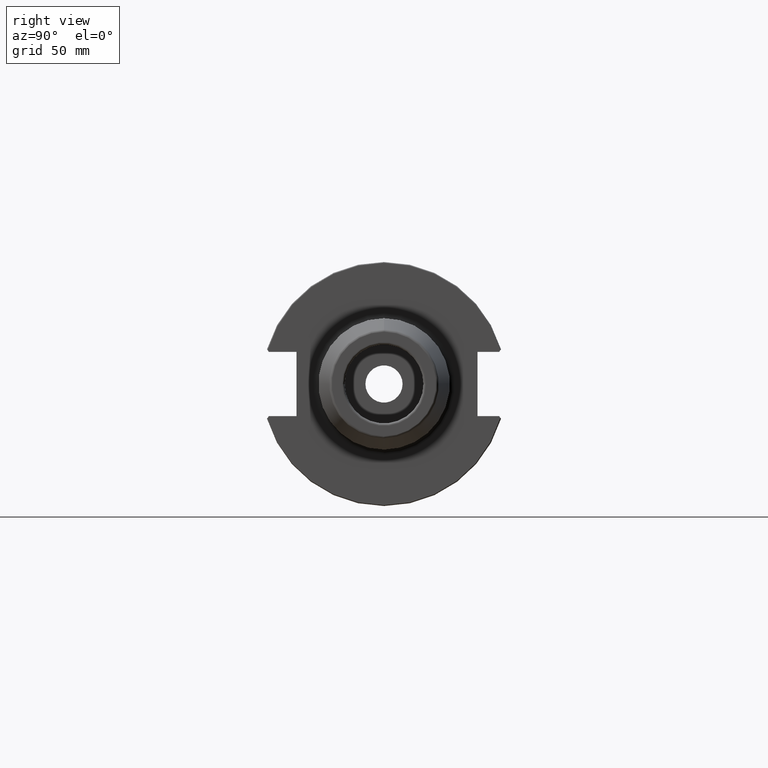
[diagram: clean part render]
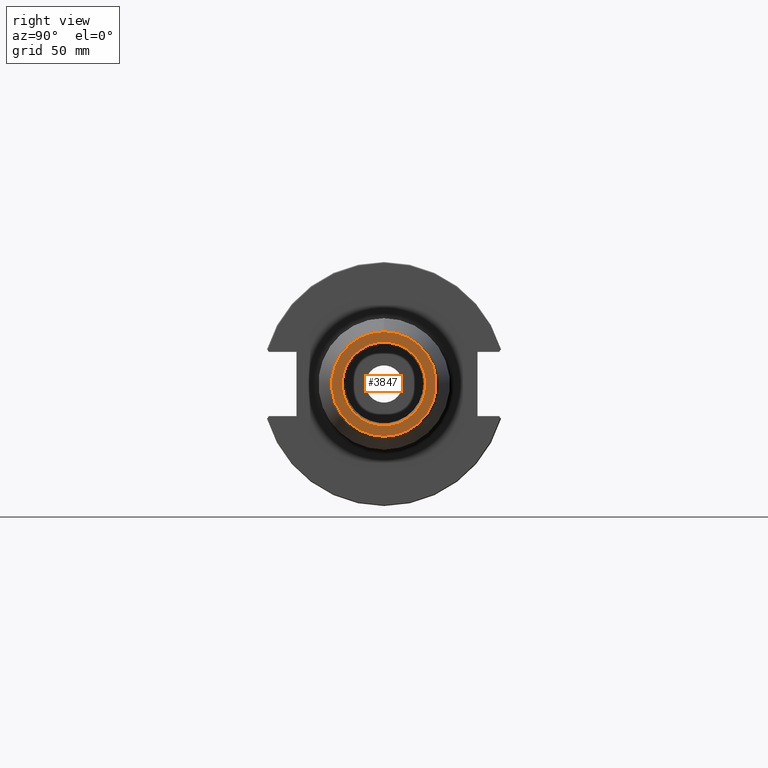
[diagram: same view with one face highlighted and labeled with its STEP entity id]
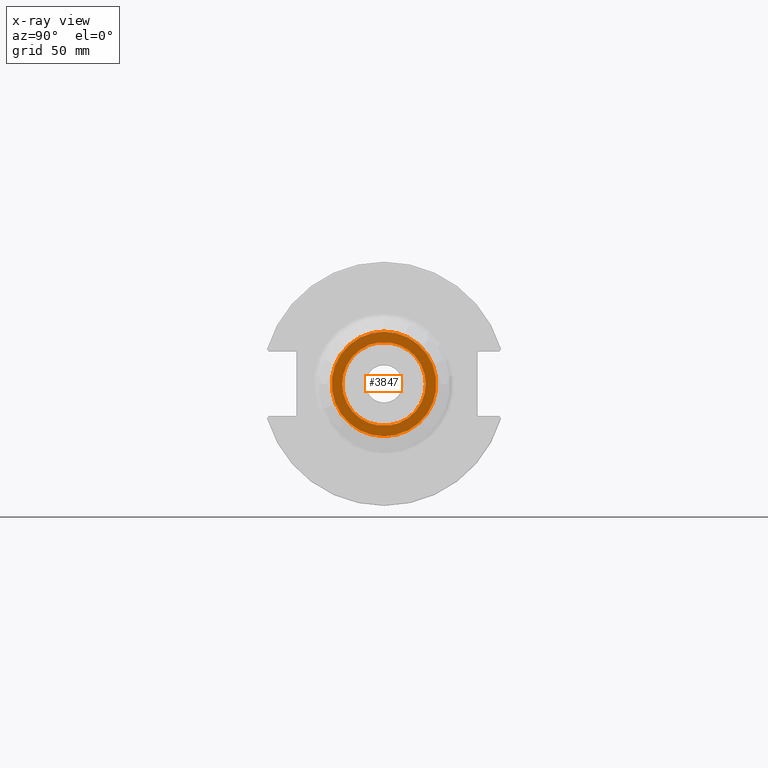
[diagram: x-ray of the same camera — body ghosted, the highlighted face saturated]
A machine part, right view. The second image highlights one B-rep face of the part: STEP entity #3847.
The next image is the same camera in x-ray: the body ghosted, the highlighted face saturated — about 0% of this face is hidden behind the body in this view.
In plain terms, the highlighted planar face has unit normal (-1, 0, 0).
Its self-contained STEP definition (entity closure, byte-faithful):
#1609=CARTESIAN_POINT('',(1.6E2,0.E0,0.E0));
#1610=DIRECTION('',(-1.E0,0.E0,0.E0));
#1611=DIRECTION('',(0.E0,0.E0,1.E0));
#1612=AXIS2_PLACEMENT_3D('',#1609,#1610,#1611);
#1614=CARTESIAN_POINT('',(1.6E2,0.E0,0.E0));
#1615=DIRECTION('',(-1.E0,0.E0,0.E0));
#1616=DIRECTION('',(0.E0,0.E0,-1.E0));
#1617=AXIS2_PLACEMENT_3D('',#1614,#1615,#1616);
#1619=CARTESIAN_POINT('',(1.6E2,0.E0,0.E0));
#1620=DIRECTION('',(-1.E0,0.E0,0.E0));
#1621=DIRECTION('',(0.E0,-1.E0,0.E0));
#1622=AXIS2_PLACEMENT_3D('',#1619,#1620,#1621);
#1624=CARTESIAN_POINT('',(1.6E2,0.E0,0.E0));
#1625=DIRECTION('',(-1.E0,0.E0,0.E0));
#1626=DIRECTION('',(0.E0,1.E0,0.E0));
#1627=AXIS2_PLACEMENT_3D('',#1624,#1625,#1626);
#2056=CARTESIAN_POINT('',(1.6E2,-2.493539664023E-14,2.107560950834E1));
#2057=CARTESIAN_POINT('',(1.6E2,0.E0,-2.107560950834E1));
#2058=VERTEX_POINT('',#2056);
#2059=VERTEX_POINT('',#2057);
#2060=CARTESIAN_POINT('',(1.6E2,-1.6875E1,0.E0));
#2061=CARTESIAN_POINT('',(1.6E2,1.6875E1,0.E0));
#2062=VERTEX_POINT('',#2060);
#2063=VERTEX_POINT('',#2061);
#3831=CARTESIAN_POINT('',(1.6E2,0.E0,0.E0));
#3832=DIRECTION('',(-1.E0,0.E0,0.E0));
#3833=DIRECTION('',(0.E0,0.E0,-1.E0));
#3834=AXIS2_PLACEMENT_3D('',#3831,#3832,#3833);
#3835=PLANE('',#3834);
#3837=ORIENTED_EDGE('',*,*,#3836,.T.);
#3839=ORIENTED_EDGE('',*,*,#3838,.T.);
#3840=EDGE_LOOP('',(#3837,#3839));
#3841=FACE_OUTER_BOUND('',#3840,.F.);
#3842=ORIENTED_EDGE('',*,*,#3821,.F.);
#3844=ORIENTED_EDGE('',*,*,#3843,.F.);
#3845=EDGE_LOOP('',(#3842,#3844));
#3846=FACE_BOUND('',#3845,.F.);
#3847=ADVANCED_FACE('',(#3841,#3846),#3835,.F.);
#1613=CIRCLE('',#1612,2.107560950834E1);
#1618=CIRCLE('',#1617,2.107560950834E1);
#1623=CIRCLE('',#1622,1.6875E1);
#1628=CIRCLE('',#1627,1.6875E1);
#3821=EDGE_CURVE('',#2062,#2063,#1623,.T.);
#3836=EDGE_CURVE('',#2058,#2059,#1613,.T.);
#3838=EDGE_CURVE('',#2059,#2058,#1618,.T.);
#3843=EDGE_CURVE('',#2063,#2062,#1628,.T.);